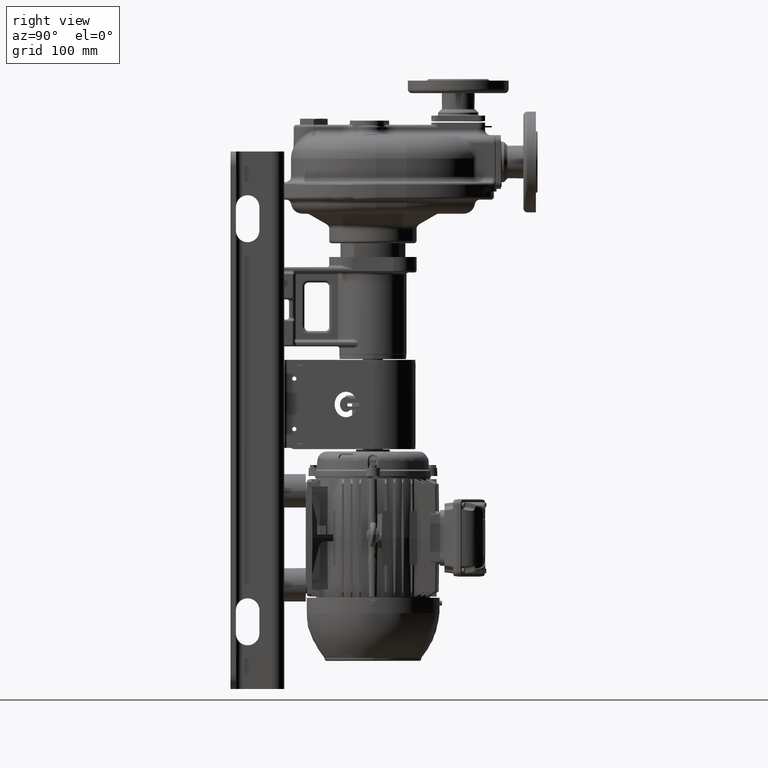
[diagram: clean part render]
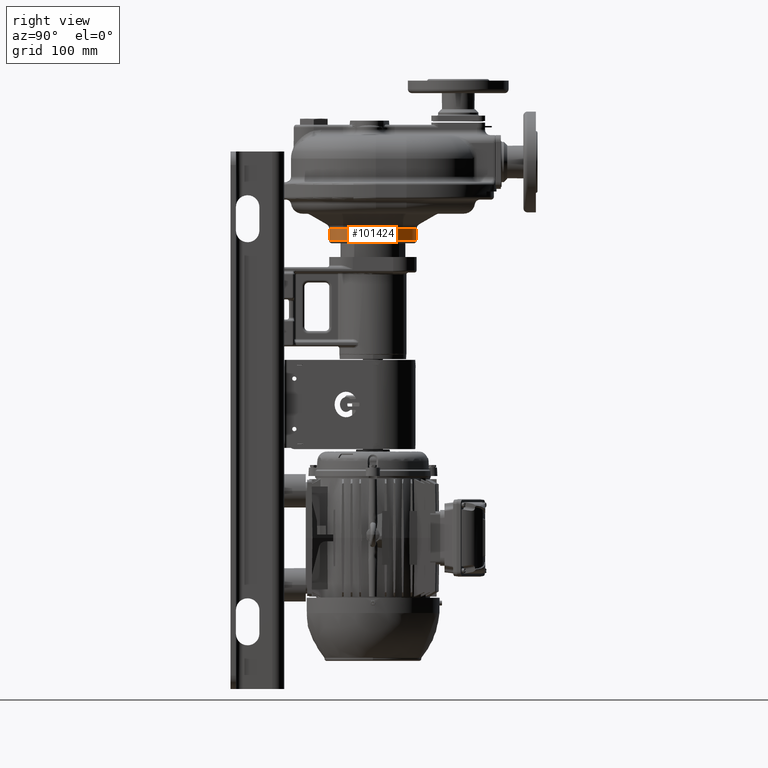
[diagram: same view with one face highlighted and labeled with its STEP entity id]
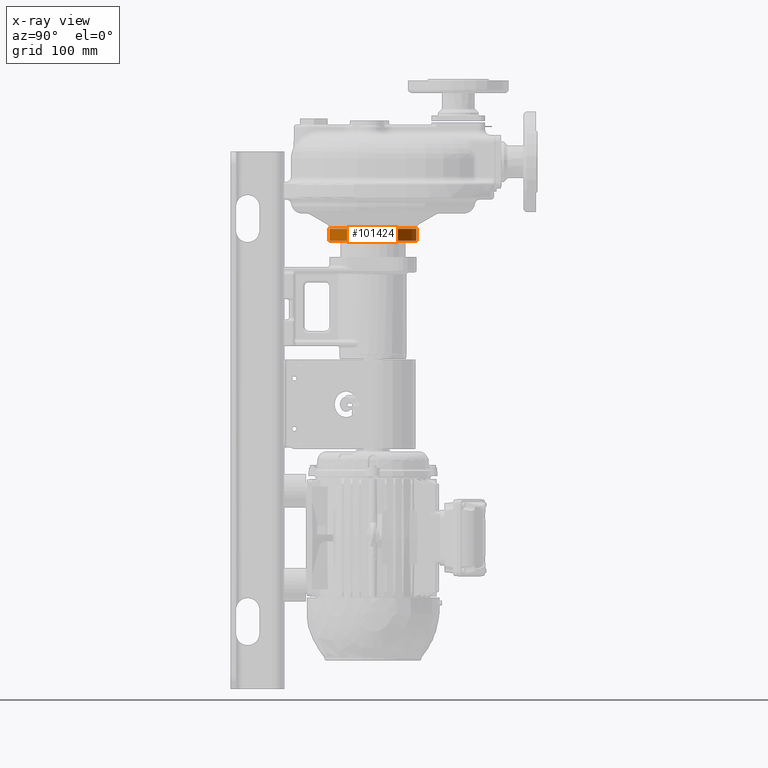
[diagram: x-ray of the same camera — body ghosted, the highlighted face saturated]
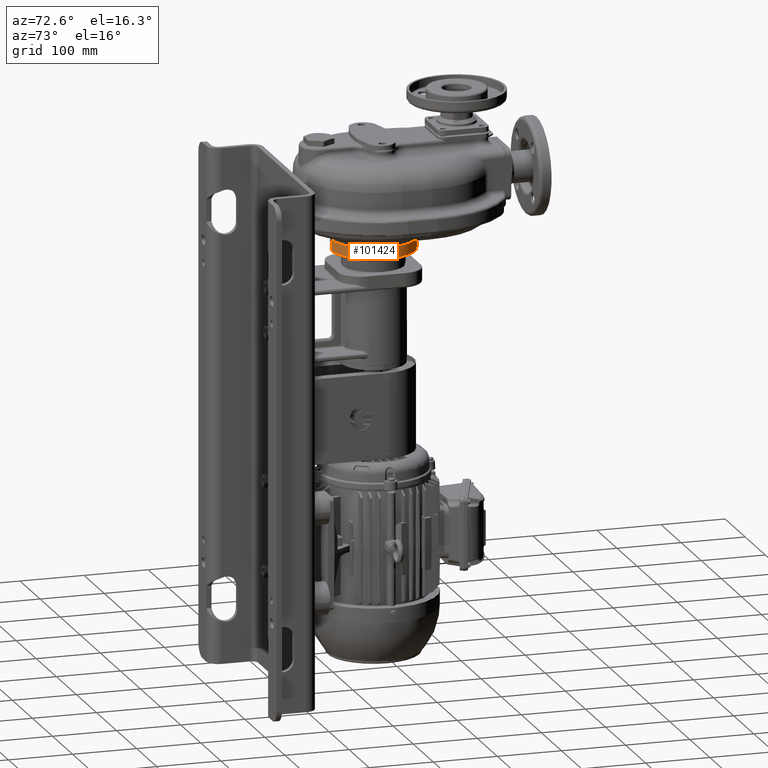
[diagram: same view with one face highlighted and labeled with its STEP entity id]
A machine part, right view. The second image highlights one B-rep face of the part: STEP entity #101424.
The next image is the same camera in x-ray: the body ghosted, the highlighted face saturated — about 0% of this face is hidden behind the body in this view.
A second angle (auxiliary view) of the same face is appended — the face is thin or edge-on in the first view.
In plain terms, the highlighted cylindrical surface (partial cylindrical patch) has radius 65 mm, axis along (0, 0, 1).
Its self-contained STEP definition (entity closure, byte-faithful):
#34822=CARTESIAN_POINT('',(0.E0,1.32E2,8.488119784648E1));
#34823=DIRECTION('',(0.E0,0.E0,1.E0));
#34824=DIRECTION('',(0.E0,-1.E0,0.E0));
#34825=AXIS2_PLACEMENT_3D('',#34822,#34823,#34824);
#34847=DIRECTION('',(0.E0,0.E0,1.E0));
#34848=VECTOR('',#34847,1.738119784648E1);
#34849=CARTESIAN_POINT('',(1.768810179956E-14,1.97E2,6.75E1));
#34850=LINE('',#34849,#34848);
#34851=DIRECTION('',(0.E0,0.E0,1.E0));
#34852=VECTOR('',#34851,1.738119784648E1);
#34853=CARTESIAN_POINT('',(0.E0,6.7E1,6.75E1));
#34854=LINE('',#34853,#34852);
#34865=CARTESIAN_POINT('',(0.E0,1.32E2,6.75E1));
#34866=DIRECTION('',(0.E0,0.E0,1.E0));
#34867=DIRECTION('',(0.E0,-1.E0,0.E0));
#34868=AXIS2_PLACEMENT_3D('',#34865,#34866,#34867);
#63461=CARTESIAN_POINT('',(0.E0,6.7E1,8.488119784648E1));
#63463=VERTEX_POINT('',#63461);
#63465=CARTESIAN_POINT('',(2.090558832256E-14,1.97E2,8.488119784648E1));
#63467=VERTEX_POINT('',#63465);
#63481=CARTESIAN_POINT('',(0.E0,6.7E1,6.75E1));
#63482=CARTESIAN_POINT('',(0.E0,1.97E2,6.75E1));
#63483=VERTEX_POINT('',#63481);
#63484=VERTEX_POINT('',#63482);
#101413=CARTESIAN_POINT('',(0.E0,1.32E2,6.13E1));
#101414=DIRECTION('',(0.E0,0.E0,1.E0));
#101415=DIRECTION('',(0.E0,-1.E0,0.E0));
#101416=AXIS2_PLACEMENT_3D('',#101413,#101414,#101415);
#101417=CYLINDRICAL_SURFACE('',#101416,6.5E1);
#101418=ORIENTED_EDGE('',*,*,#101404,.F.);
#101419=ORIENTED_EDGE('',*,*,#101379,.T.);
#101420=ORIENTED_EDGE('',*,*,#101351,.T.);
#101421=ORIENTED_EDGE('',*,*,#101376,.F.);
#101422=EDGE_LOOP('',(#101418,#101419,#101420,#101421));
#101423=FACE_OUTER_BOUND('',#101422,.F.);
#101424=ADVANCED_FACE('',(#101423),#101417,.T.);
#34826=CIRCLE('',#34825,6.5E1);
#34869=CIRCLE('',#34868,6.5E1);
#101351=EDGE_CURVE('',#63463,#63467,#34826,.T.);
#101376=EDGE_CURVE('',#63484,#63467,#34850,.T.);
#101379=EDGE_CURVE('',#63483,#63463,#34854,.T.);
#101404=EDGE_CURVE('',#63483,#63484,#34869,.T.);